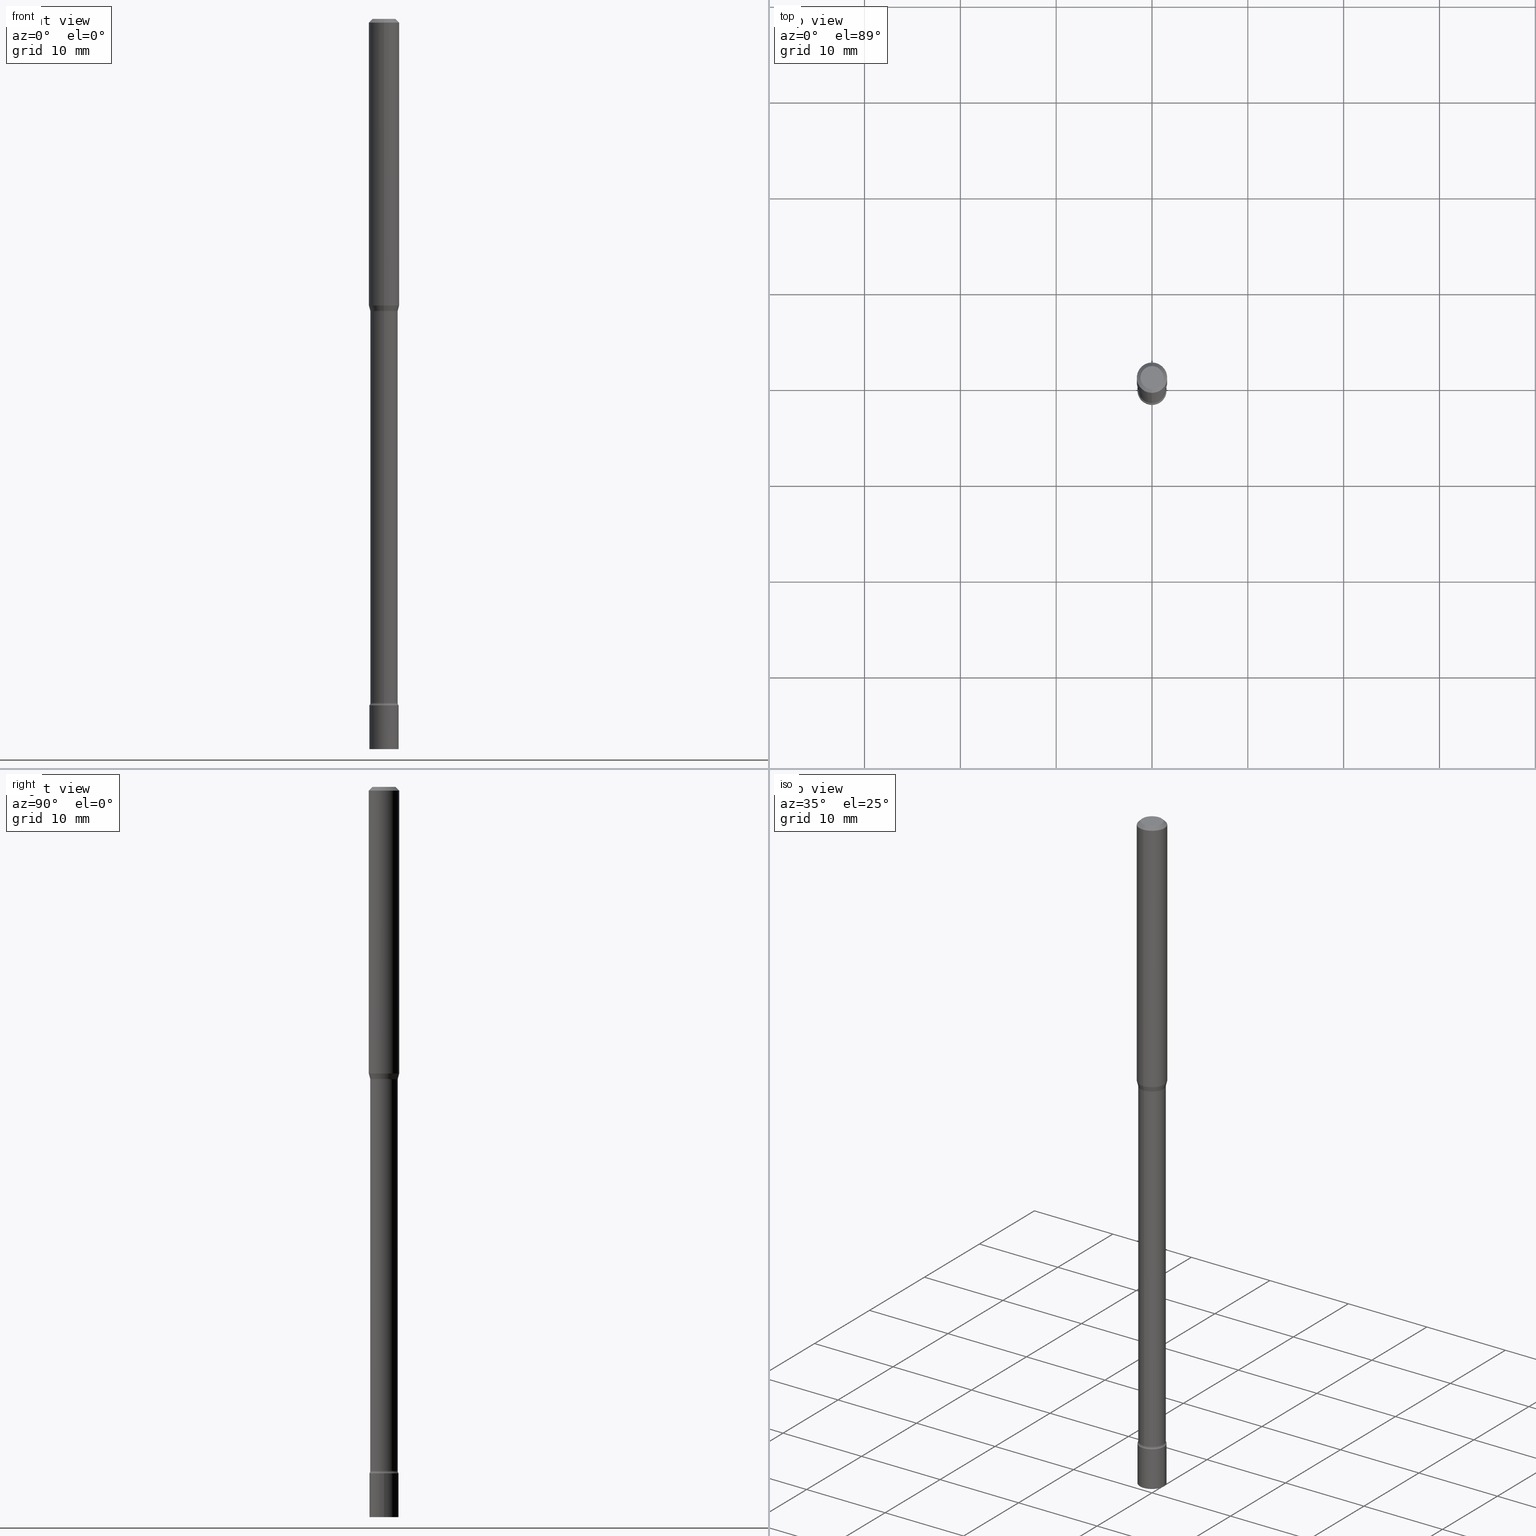
[diagram: canonical four-view strip — front | top / right | iso, engineering-drawing reading convention]
A machine part, canonical four-view strip (front | top / right | iso — engineering-drawing reading convention). The complete STEP part file that produces these views, byte-faithful:
ISO-10303-21;
HEADER;
FILE_DESCRIPTION (( 'STEP AP203' ),
    '1' );
FILE_NAME ('03642.STEP',
    '2024-03-08T22:18:01',
    ( '' ),
    ( '' ),
    'SwSTEP 2.0',
    'SolidWorks 2023',
    '' );
FILE_SCHEMA (( 'CONFIG_CONTROL_DESIGN' ));
ENDSEC;

DATA;
#1 = CIRCLE ( 'NONE', #406, 0.05999999999999999778 ) ;
#2 = DIRECTION ( 'NONE',  ( -1.807323732225326984E-15, -0.2588190451025177419, 0.9659258262890690894 ) ) ;
#3 = EDGE_CURVE ( 'NONE', #59, #459, #249, .T. ) ;
#4 = LINE ( 'NONE', #159, #421 ) ;
#5 = CC_DESIGN_DATE_AND_TIME_ASSIGNMENT ( #30, #104, ( #339 ) ) ;
#6 = DESIGN_CONTEXT ( 'detailed design', #25, 'design' ) ;
#7 = CARTESIAN_POINT ( 'NONE',  ( -3.938390950214759209E-16, -0.05640000000000419678, -1.201974787463810923 ) ) ;
#8 = ORIENTED_EDGE ( 'NONE', *, *, #14, .T. ) ;
#9 = FACE_OUTER_BOUND ( 'NONE', #244, .T. ) ;
#10 = AXIS2_PLACEMENT_3D ( 'NONE', #17, #451, #262 ) ;
#11 = CARTESIAN_POINT ( 'NONE',  ( 6.872543829465588076E-29, -9.811707045645844346E-15, -2.810251153914437250 ) ) ;
#12 = APPROVAL_PERSON_ORGANIZATION ( #100, #142, #19 ) ;
#13 = DIRECTION ( 'NONE',  ( -6.982962677686265922E-15, -1.000000000000000000, 3.483106191921935554E-15 ) ) ;
#14 = EDGE_CURVE ( 'NONE', #314, #465, #331, .T. ) ;
#15 = ADVANCED_FACE ( 'NONE', ( #285 ), #304, .F. ) ;
#16 = DIRECTION ( 'NONE',  ( 1.000000000000000000, -6.982962677686265922E-15, 4.876176775795935793E-29 ) ) ;
#17 = CARTESIAN_POINT ( 'NONE',  ( 2.929967031173688122E-29, -4.183018526563891647E-15, -1.198092501787273223 ) ) ;
#18 = CARTESIAN_POINT ( 'NONE',  ( 4.135358722124479375E-16, 0.05639999999999040919, -2.810251153914437250 ) ) ;
#19 = APPROVAL_ROLE ( '' ) ;
#20 = CARTESIAN_POINT ( 'NONE',  ( 4.364351673553919652E-16, 0.06249999999999995143, -0.01500000000000024751 ) ) ;
#21 = TOROIDAL_SURFACE ( 'NONE', #35, 0.07139999999999999125, 0.01499999999999999424 ) ;
#22 = ADVANCED_FACE ( 'NONE', ( #442 ), #21, .F. ) ;
#23 = CARTESIAN_POINT ( 'NONE',  ( 6.896222033442085337E-29, -9.845977375537671403E-15, -2.819999999999999840 ) ) ;
#24 = CYLINDRICAL_SURFACE ( 'NONE', #238, 0.05999999999999999778 ) ;
#25 = APPLICATION_CONTEXT ( 'configuration controlled 3d designs of mechanical parts and assemblies' ) ;
#26 = CARTESIAN_POINT ( 'NONE',  ( 3.668289835888551515E-31, -5.237097954027526852E-17, -0.01500000000000003067 ) ) ;
#27 = ORIENTED_EDGE ( 'NONE', *, *, #360, .F. ) ;
#28 = AXIS2_PLACEMENT_3D ( 'NONE', #45, #183, #395 ) ;
#29 = ORIENTED_EDGE ( 'NONE', *, *, #396, .F. ) ;
#30 = DATE_AND_TIME ( #463, #188 ) ;
#31 = ADVANCED_BREP_SHAPE_REPRESENTATION ( '03642', ( #222, #232, #504 ), #81 ) ;
#32 = CC_DESIGN_PERSON_AND_ORGANIZATION_ASSIGNMENT ( #429, #194, ( #279 ) ) ;
#33 = EDGE_LOOP ( 'NONE', ( #281, #154, #379, #185 ) ) ;
#34 = DIRECTION ( 'NONE',  ( 1.000000000000000000, -6.982962677686268288E-15, 0.000000000000000000 ) ) ;
#35 = AXIS2_PLACEMENT_3D ( 'NONE', #329, #377, #199 ) ;
#36 = VECTOR ( 'NONE', #290, 39.37007874015748143 ) ;
#37 = ORIENTED_EDGE ( 'NONE', *, *, #308, .T. ) ;
#38 = CARTESIAN_POINT ( 'NONE',  ( 6.896222033442085337E-29, -9.845977375537671403E-15, -2.819999999999999840 ) ) ;
#39 = DIRECTION ( 'NONE',  ( -2.445526557259029404E-29, 3.491398636018344234E-15, 1.000000000000000000 ) ) ;
#40 = CIRCLE ( 'NONE', #502, 0.05639999999999999181 ) ;
#41 = CIRCLE ( 'NONE', #434, 0.05999999999999999778 ) ;
#42 = LINE ( 'NONE', #208, #36 ) ;
#43 = DIRECTION ( 'NONE',  ( -6.982962677686266711E-15, -1.000000000000000000, 0.000000000000000000 ) ) ;
#44 = APPROVAL ( #319, 'UNSPECIFIED' ) ;
#45 = CARTESIAN_POINT ( 'NONE',  ( 2.929967031173688122E-29, -4.183018526563891647E-15, -1.198092501787273223 ) ) ;
#46 = EDGE_CURVE ( 'NONE', #440, #197, #4, .T. ) ;
#47 = DIRECTION ( 'NONE',  ( -2.445526557259029404E-29, 3.491398636018344234E-15, 1.000000000000000000 ) ) ;
#48 = AXIS2_PLACEMENT_3D ( 'NONE', #175, #357, #256 ) ;
#49 = CARTESIAN_POINT ( 'NONE',  ( 3.316907271900976096E-16, 0.04749999999999999362, -1.803003548668948845E-16 ) ) ;
#50 = PERSON_AND_ORGANIZATION ( #505, #470 ) ;
#51 = LINE ( 'NONE', #352, #367 ) ;
#52 = CARTESIAN_POINT ( 'NONE',  ( 0.000000000000000000, 0.000000000000000000, 0.000000000000000000 ) ) ;
#53 = DIRECTION ( 'NONE',  ( -2.438088387897960049E-29, 3.491481338843145188E-15, 1.000000000000000000 ) ) ;
#54 = CARTESIAN_POINT ( 'NONE',  ( -3.938390950215061442E-16, -0.05640000000000010283, 1.969148830714349761E-16 ) ) ;
#55 = CARTESIAN_POINT ( 'NONE',  ( -3.974081752709226087E-16, -0.05691111260566815433, -1.198092501787273223 ) ) ;
#56 = APPLICATION_CONTEXT ( 'configuration controlled 3d designs of mechanical parts and assemblies' ) ;
#57 = CLOSED_SHELL ( 'NONE', ( #258, #108, #282, #321 ) ) ;
#58 = ORIENTED_EDGE ( 'NONE', *, *, #201, .T. ) ;
#59 = VERTEX_POINT ( 'NONE', #166 ) ;
#60 = COORDINATED_UNIVERSAL_TIME_OFFSET ( 5, 0, .BEHIND. ) ;
#61 = VERTEX_POINT ( 'NONE', #292 ) ;
#62 = EDGE_CURVE ( 'NONE', #224, #503, #336, .T. ) ;
#63 = ORIENTED_EDGE ( 'NONE', *, *, #147, .T. ) ;
#64 = ADVANCED_FACE ( 'NONE', ( #237 ), #369, .F. ) ;
#65 = CARTESIAN_POINT ( 'NONE',  ( -4.364351673553912750E-16, -0.06250000000000005551, -0.01499999999999981209 ) ) ;
#66 = AXIS2_PLACEMENT_3D ( 'NONE', #295, #91, #422 ) ;
#67 = LOCAL_TIME ( 17, 18, 1.000000000000000000, #95 ) ;
#68 = ORIENTED_EDGE ( 'NONE', *, *, #296, .T. ) ;
#69 = ORIENTED_EDGE ( 'NONE', *, *, #441, .T. ) ;
#70 = ORIENTED_EDGE ( 'NONE', *, *, #97, .F. ) ;
#71 = ORIENTED_EDGE ( 'NONE', *, *, #218, .T. ) ;
#72 = EDGE_LOOP ( 'NONE', ( #162, #151 ) ) ;
#73 = CLOSED_SHELL ( 'NONE', ( #15, #345, #203, #247, #476, #261, #362, #403, #515, #217, #64, #86, #273, #22 ) ) ;
#74 = LOCAL_TIME ( 17, 18, 1.000000000000000000, #177 ) ;
#75 = DIRECTION ( 'NONE',  ( -6.982962677686266711E-15, -1.000000000000000000, 3.491398636018344234E-15 ) ) ;
#76 = ORIENTED_EDGE ( 'NONE', *, *, #242, .T. ) ;
#77 = VERTEX_POINT ( 'NONE', #55 ) ;
#78 = UNCERTAINTY_MEASURE_WITH_UNIT (LENGTH_MEASURE( 1.000000000000000082E-05 ), #511, 'distance_accuracy_value', 'NONE');
#79 = DIRECTION ( 'NONE',  ( -6.982962677686266711E-15, -1.000000000000000000, 3.491398636018344234E-15 ) ) ;
#80 = AXIS2_PLACEMENT_3D ( 'NONE', #96, #263, #127 ) ;
#81 =( GEOMETRIC_REPRESENTATION_CONTEXT ( 3 ) GLOBAL_UNCERTAINTY_ASSIGNED_CONTEXT ( ( #78 ) ) GLOBAL_UNIT_ASSIGNED_CONTEXT ( ( #511, #313, #90 ) ) REPRESENTATION_CONTEXT ( 'NONE', 'WORKASPACE' ) );
#82 = CARTESIAN_POINT ( 'NONE',  ( -4.985835351867319182E-16, -0.07140000000000999714, -2.810251153914437250 ) ) ;
#83 = APPROVAL ( #456, 'UNSPECIFIED' ) ;
#84 = CARTESIAN_POINT ( 'NONE',  ( 2.929967031173688122E-29, -4.183018526563891647E-15, -1.198092501787273223 ) ) ;
#85 = LINE ( 'NONE', #418, #305 ) ;
#86 = ADVANCED_FACE ( 'NONE', ( #384 ), #375, .F. ) ;
#87 = CARTESIAN_POINT ( 'NONE',  ( 4.263256414561289732E-16, 0.05999999999999015149, -2.819999999999999840 ) ) ;
#88 = EDGE_CURVE ( 'NONE', #440, #152, #513, .T. ) ;
#89 = FACE_OUTER_BOUND ( 'NONE', #325, .T. ) ;
#90 =( NAMED_UNIT ( * ) SI_UNIT ( $, .STERADIAN. ) SOLID_ANGLE_UNIT ( ) );
#91 = DIRECTION ( 'NONE',  ( 1.000000000000000000, -7.105427357601001070E-15, 4.926314495724585698E-29 ) ) ;
#92 = AXIS2_PLACEMENT_3D ( 'NONE', #393, #266, #426 ) ;
#93 = CARTESIAN_POINT ( 'NONE',  ( -3.773273898774340269E-16, -0.04749999999999999362, 1.369235958988242775E-16 ) ) ;
#94 = CC_DESIGN_APPROVAL ( #83, ( #339 ) ) ;
#95 = COORDINATED_UNIVERSAL_TIME_OFFSET ( 5, 0, .BEHIND. ) ;
#96 = CARTESIAN_POINT ( 'NONE',  ( 2.939461263898527766E-29, -4.196573133479589427E-15, -1.201974787463811145 ) ) ;
#97 = EDGE_CURVE ( 'NONE', #152, #440, #196, .T. ) ;
#98 = DIRECTION ( 'NONE',  ( -2.445526557259029404E-29, 3.491398636018344234E-15, 1.000000000000000000 ) ) ;
#99 = DIRECTION ( 'NONE',  ( -2.445526557259029404E-29, 3.491398636018344234E-15, 1.000000000000000000 ) ) ;
#100 = PERSON_AND_ORGANIZATION ( #505, #470 ) ;
#101 = AXIS2_PLACEMENT_3D ( 'NONE', #38, #250, #412 ) ;
#102 = AXIS2_PLACEMENT_3D ( 'NONE', #156, #327, #165 ) ;
#103 = CC_DESIGN_DATE_AND_TIME_ASSIGNMENT ( #350, #267, ( #114 ) ) ;
#104 = DATE_TIME_ROLE ( 'creation_date' ) ;
#105 = FACE_OUTER_BOUND ( 'NONE', #202, .T. ) ;
#106 = EDGE_CURVE ( 'NONE', #465, #314, #400, .T. ) ;
#107 = DATE_AND_TIME ( #136, #67 ) ;
#108 = ADVANCED_FACE ( 'NONE', ( #492 ), #210, .T. ) ;
#109 = DIRECTION ( 'NONE',  ( -6.982962677686266711E-15, -1.000000000000000000, 0.000000000000000000 ) ) ;
#110 = ORIENTED_EDGE ( 'NONE', *, *, #123, .F. ) ;
#111 = PERSON_AND_ORGANIZATION ( #505, #470 ) ;
#112 = DIRECTION ( 'NONE',  ( -6.982962677686265922E-15, -1.000000000000000000, 3.491398636018344234E-15 ) ) ;
#113 = VECTOR ( 'NONE', #425, 39.37007874015748143 ) ;
#114 = SECURITY_CLASSIFICATION ( '', '', #469 ) ;
#115 = EDGE_CURVE ( 'NONE', #503, #197, #433, .T. ) ;
#116 = ORIENTED_EDGE ( 'NONE', *, *, #3, .T. ) ;
#117 = ORIENTED_EDGE ( 'NONE', *, *, #291, .F. ) ;
#118 = EDGE_LOOP ( 'NONE', ( #37, #225 ) ) ;
#119 = DIRECTION ( 'NONE',  ( -2.445526557259029404E-29, 3.491398636018344234E-15, 1.000000000000000000 ) ) ;
#120 = AXIS2_PLACEMENT_3D ( 'NONE', #497, #53, #16 ) ;
#121 = CYLINDRICAL_SURFACE ( 'NONE', #343, 0.05640000000000010283 ) ;
#122 = EDGE_CURVE ( 'NONE', #436, #460, #286, .T. ) ;
#123 = EDGE_CURVE ( 'NONE', #189, #148, #163, .T. ) ;
#124 = CARTESIAN_POINT ( 'NONE',  ( 4.007461029687658664E-16, 0.05639999999999580071, -1.201974787463811145 ) ) ;
#125 = VECTOR ( 'NONE', #351, 39.37007874015748143 ) ;
#126 = DIRECTION ( 'NONE',  ( -2.445526557259029404E-29, 3.491398636018344234E-15, 1.000000000000000000 ) ) ;
#127 = DIRECTION ( 'NONE',  ( -6.982962677686265922E-15, -1.000000000000000000, 2.421851058212999609E-15 ) ) ;
#128 = DIRECTION ( 'NONE',  ( -2.445526557259029404E-29, 3.491398636018344234E-15, 1.000000000000000000 ) ) ;
#129 = PLANE ( 'NONE',  #494 ) ;
#130 = DIRECTION ( 'NONE',  ( 6.982962677686265922E-15, 1.000000000000000000, -3.483106191921935554E-15 ) ) ;
#131 = MECHANICAL_CONTEXT ( 'NONE', #56, 'mechanical' ) ;
#132 = EDGE_CURVE ( 'NONE', #407, #460, #259, .T. ) ;
#133 = CARTESIAN_POINT ( 'NONE',  ( 6.872381534443541527E-29, -9.811939461354673700E-15, -2.810251153914437250 ) ) ;
#134 = AXIS2_PLACEMENT_3D ( 'NONE', #454, #255, #140 ) ;
#135 = CONICAL_SURFACE ( 'NONE', #102, 0.05691111260566397018, 0.2617993877991497964 ) ;
#136 = CALENDAR_DATE ( 2024, 8, 3 ) ;
#137 = CARTESIAN_POINT ( 'NONE',  ( 4.440892098500915082E-16, 0.06249999999999993755, -0.01500000000000024751 ) ) ;
#138 = DIRECTION ( 'NONE',  ( 4.937700262164548042E-15, 0.7071067811865451302, -0.7071067811865499042 ) ) ;
#139 = DIMENSIONAL_EXPONENTS ( 1.000000000000000000, 0.000000000000000000, 0.000000000000000000, 0.000000000000000000, 0.000000000000000000, 0.000000000000000000, 0.000000000000000000 ) ;
#140 = DIRECTION ( 'NONE',  ( 7.105427357600997914E-15, 1.000000000000000000, 0.000000000000000000 ) ) ;
#141 = CARTESIAN_POINT ( 'NONE',  ( 3.668289835888551515E-31, -5.237097954027526852E-17, -0.01500000000000003067 ) ) ;
#142 = APPROVAL ( #264, 'UNSPECIFIED' ) ;
#143 = ORIENTED_EDGE ( 'NONE', *, *, #160, .F. ) ;
#144 = AXIS2_PLACEMENT_3D ( 'NONE', #216, #220, #182 ) ;
#145 = VECTOR ( 'NONE', #2, 39.37007874015748143 ) ;
#146 = ORIENTED_EDGE ( 'NONE', *, *, #106, .F. ) ;
#147 = EDGE_CURVE ( 'NONE', #436, #440, #446, .T. ) ;
#148 = VERTEX_POINT ( 'NONE', #87 ) ;
#149 = ORIENTED_EDGE ( 'NONE', *, *, #115, .T. ) ;
#150 = DATE_AND_TIME ( #272, #354 ) ;
#151 = ORIENTED_EDGE ( 'NONE', *, *, #410, .F. ) ;
#152 = VERTEX_POINT ( 'NONE', #346 ) ;
#153 = AXIS2_PLACEMENT_3D ( 'NONE', #52, #348, #219 ) ;
#154 = ORIENTED_EDGE ( 'NONE', *, *, #160, .T. ) ;
#155 = ORIENTED_EDGE ( 'NONE', *, *, #291, .T. ) ;
#156 = CARTESIAN_POINT ( 'NONE',  ( 2.929967031173688122E-29, -4.183018526563891647E-15, -1.198092501787273223 ) ) ;
#157 = PRODUCT_RELATED_PRODUCT_CATEGORY ( 'detail', '', ( #309 ) ) ;
#158 = EDGE_LOOP ( 'NONE', ( #8, #276 ) ) ;
#159 = CARTESIAN_POINT ( 'NONE',  ( 4.440892098500625669E-16, 0.06250000000000000000, -2.182124147511465146E-16 ) ) ;
#160 = EDGE_CURVE ( 'NONE', #436, #77, #453, .T. ) ;
#161 = CARTESIAN_POINT ( 'NONE',  ( -3.974081752709226087E-16, -0.05691111260566815433, -1.198092501787273223 ) ) ;
#162 = ORIENTED_EDGE ( 'NONE', *, *, #209, .F. ) ;
#163 = CIRCLE ( 'NONE', #134, 0.01499999999999997689 ) ;
#164 = EDGE_CURVE ( 'NONE', #460, #407, #40, .T. ) ;
#165 = DIRECTION ( 'NONE',  ( -6.982962677686265922E-15, -1.000000000000000000, 2.400100673301879051E-15 ) ) ;
#166 = CARTESIAN_POINT ( 'NONE',  ( 0.05999999999999999778, -1.089342177719061299E-14, -3.000000000000000444 ) ) ;
#167 = DIRECTION ( 'NONE',  ( -2.445526557259029404E-29, 3.491398636018344234E-15, 1.000000000000000000 ) ) ;
#168 = CARTESIAN_POINT ( 'NONE',  ( -4.287811248607203282E-16, -0.06250000000000005551, -0.01499999999999981209 ) ) ;
#169 = CARTESIAN_POINT ( 'NONE',  ( 7.071934401616030979E-46, -1.009637047306788227E-31, -2.891783931204707953E-17 ) ) ;
#170 = CARTESIAN_POINT ( 'NONE',  ( 6.896384891470462537E-29, -9.845744153571730021E-15, -2.819999999999999840 ) ) ;
#171 = CONICAL_SURFACE ( 'NONE', #461, 0.06250000000000000000, 0.7853981633974483900 ) ;
#172 = AXIS2_PLACEMENT_3D ( 'NONE', #82, #416, #109 ) ;
#173 = FACE_OUTER_BOUND ( 'NONE', #118, .T. ) ;
#174 = DIRECTION ( 'NONE',  ( -2.445526557259029404E-29, 3.491398636018344234E-15, 1.000000000000000000 ) ) ;
#175 = CARTESIAN_POINT ( 'NONE',  ( 0.000000000000000000, 0.000000000000000000, 0.000000000000000000 ) ) ;
#176 = DIRECTION ( 'NONE',  ( -2.445526557259029404E-29, 3.491398636018344234E-15, 1.000000000000000000 ) ) ;
#177 = COORDINATED_UNIVERSAL_TIME_OFFSET ( 5, 0, .BEHIND. ) ;
#178 = CONICAL_SURFACE ( 'NONE', #10, 0.05691111260566397018, 0.2617993877991497964 ) ;
#179 = CIRCLE ( 'NONE', #28, 0.05691111260566397018 ) ;
#180 = FACE_OUTER_BOUND ( 'NONE', #508, .T. ) ;
#181 = CC_DESIGN_APPROVAL ( #142, ( #114 ) ) ;
#182 = DIRECTION ( 'NONE',  ( -6.982962677686265922E-15, -1.000000000000000000, 4.370956789862821150E-15 ) ) ;
#183 = DIRECTION ( 'NONE',  ( -2.445526557259029404E-29, 3.491398636018344234E-15, 1.000000000000000000 ) ) ;
#184 = DIRECTION ( 'NONE',  ( 1.000000000000000000, 0.000000000000000000, 0.000000000000000000 ) ) ;
#185 = ORIENTED_EDGE ( 'NONE', *, *, #88, .F. ) ;
#186 = DIRECTION ( 'NONE',  ( 2.445526557259029404E-29, -3.491398636018344234E-15, -1.000000000000000000 ) ) ;
#187 = AXIS2_PLACEMENT_3D ( 'NONE', #133, #174, #450 ) ;
#188 = LOCAL_TIME ( 17, 18, 1.000000000000000000, #60 ) ;
#189 = VERTEX_POINT ( 'NONE', #18 ) ;
#190 = APPROVAL_ROLE ( '' ) ;
#191 = EDGE_CURVE ( 'NONE', #459, #465, #51, .T. ) ;
#192 = ORIENTED_EDGE ( 'NONE', *, *, #123, .T. ) ;
#193 = EDGE_LOOP ( 'NONE', ( #230, #358, #241, #265 ) ) ;
#194 = PERSON_AND_ORGANIZATION_ROLE ( 'creator' ) ;
#195 = LENGTH_MEASURE_WITH_UNIT ( LENGTH_MEASURE( 0.02539999999999999897 ), #401 );
#196 = CIRCLE ( 'NONE', #353, 0.06250000000000000000 ) ;
#197 = VERTEX_POINT ( 'NONE', #137 ) ;
#198 = CIRCLE ( 'NONE', #172, 0.01499999999999997689 ) ;
#199 = DIRECTION ( 'NONE',  ( -6.982962677686265922E-15, -1.000000000000000000, 3.491398636018344628E-15 ) ) ;
#200 = DATE_AND_TIME ( #427, #74 ) ;
#201 = EDGE_CURVE ( 'NONE', #61, #189, #359, .T. ) ;
#202 = EDGE_LOOP ( 'NONE', ( #366, #432, #68, #287 ) ) ;
#203 = ADVANCED_FACE ( 'NONE', ( #9 ), #341, .F. ) ;
#204 = DIRECTION ( 'NONE',  ( -2.445468806185136597E-29, 3.491481338843145583E-15, 1.000000000000000000 ) ) ;
#205 = CC_DESIGN_PERSON_AND_ORGANIZATION_ASSIGNMENT ( #50, #386, ( #309 ) ) ;
#206 = CARTESIAN_POINT ( 'NONE',  ( 2.939391848563759513E-29, -4.196672540189852739E-15, -1.201974787463811145 ) ) ;
#207 = CIRCLE ( 'NONE', #487, 0.05999999999999999778 ) ;
#208 = CARTESIAN_POINT ( 'NONE',  ( 0.05999999999999999778, -4.189777606611760421E-16, 2.925706065477561756E-30 ) ) ;
#209 = EDGE_CURVE ( 'NONE', #517, #148, #207, .T. ) ;
#210 = PLANE ( 'NONE',  #120 ) ;
#211 = FACE_OUTER_BOUND ( 'NONE', #512, .T. ) ;
#212 = DIRECTION ( 'NONE',  ( -6.982962677686265922E-15, -1.000000000000000000, 0.000000000000000000 ) ) ;
#213 = CC_DESIGN_APPROVAL ( #44, ( #279 ) ) ;
#214 = LINE ( 'NONE', #268, #125 ) ;
#215 = APPROVAL_ROLE ( '' ) ;
#216 = CARTESIAN_POINT ( 'NONE',  ( 2.878958209596842848E-29, -4.110194892917521342E-15, -1.177234490073830075 ) ) ;
#217 = ADVANCED_FACE ( 'NONE', ( #173 ), #129, .F. ) ;
#218 = EDGE_CURVE ( 'NONE', #189, #61, #414, .T. ) ;
#219 = DIRECTION ( 'NONE',  ( -6.982962677686266711E-15, -1.000000000000000000, 3.491398636018344234E-15 ) ) ;
#220 = DIRECTION ( 'NONE',  ( -2.445526557259029404E-29, 3.491398636018344234E-15, 1.000000000000000000 ) ) ;
#221 = DIRECTION ( 'NONE',  ( -2.445526557259029684E-29, 3.491398636018344234E-15, 1.000000000000000000 ) ) ;
#222 = MANIFOLD_SOLID_BREP ( 'Body-Move/Copy2[1]', #57 ) ;
#223 = AXIS2_PLACEMENT_3D ( 'NONE', #491, #297, #449 ) ;
#224 = VERTEX_POINT ( 'NONE', #93 ) ;
#225 = ORIENTED_EDGE ( 'NONE', *, *, #388, .T. ) ;
#226 = ORIENTED_EDGE ( 'NONE', *, *, #441, .F. ) ;
#227 = EDGE_CURVE ( 'NONE', #189, #460, #214, .T. ) ;
#228 = AXIS2_PLACEMENT_3D ( 'NONE', #417, #307, #43 ) ;
#229 = CIRCLE ( 'NONE', #288, 0.01500000000000000291 ) ;
#230 = ORIENTED_EDGE ( 'NONE', *, *, #97, .T. ) ;
#231 = PERSON_AND_ORGANIZATION_ROLE ( 'creator' ) ;
#232 = MANIFOLD_SOLID_BREP ( 'Body-Move/Copy2[2]', #73 ) ;
#233 = CYLINDRICAL_SURFACE ( 'NONE', #394, 0.06250000000000000000 ) ;
#234 = ORIENTED_EDGE ( 'NONE', *, *, #396, .T. ) ;
#235 = APPROVAL_DATE_TIME ( #200, #142 ) ;
#236 = ORIENTED_EDGE ( 'NONE', *, *, #423, .T. ) ;
#237 = FACE_OUTER_BOUND ( 'NONE', #72, .T. ) ;
#238 = AXIS2_PLACEMENT_3D ( 'NONE', #389, #496, #385 ) ;
#239 = ORIENTED_EDGE ( 'NONE', *, *, #227, .F. ) ;
#240 = APPROVAL_PERSON_ORGANIZATION ( #493, #83, #215 ) ;
#241 = ORIENTED_EDGE ( 'NONE', *, *, #115, .F. ) ;
#242 = EDGE_CURVE ( 'NONE', #77, #436, #179, .T. ) ;
#243 = FACE_OUTER_BOUND ( 'NONE', #33, .T. ) ;
#244 = EDGE_LOOP ( 'NONE', ( #500, #192, #479, #437 ) ) ;
#245 = DIRECTION ( 'NONE',  ( -2.445526557259029404E-29, 3.491398636018344234E-15, 1.000000000000000000 ) ) ;
#246 = DIRECTION ( 'NONE',  ( -2.445468806185136597E-29, 3.491481338843145583E-15, 1.000000000000000000 ) ) ;
#247 = ADVANCED_FACE ( 'NONE', ( #499 ), #171, .T. ) ;
#248 = DIRECTION ( 'NONE',  ( -1.000000000000000000, 6.982962677686265922E-15, -4.883557194083112901E-29 ) ) ;
#249 = CIRCLE ( 'NONE', #269, 0.05999999999999999778 ) ;
#250 = DIRECTION ( 'NONE',  ( -2.445468806185136597E-29, 3.491481338843145583E-15, 1.000000000000000000 ) ) ;
#251 = CC_DESIGN_SECURITY_CLASSIFICATION ( #114, ( #279 ) ) ;
#252 = CARTESIAN_POINT ( 'NONE',  ( -4.985835351867699808E-16, -0.07140000000000419622, -1.201974787463810701 ) ) ;
#253 = DIRECTION ( 'NONE',  ( -6.982962677686265922E-15, -1.000000000000000000, 2.421851058212999609E-15 ) ) ;
#254 = CARTESIAN_POINT ( 'NONE',  ( 0.000000000000000000, 0.000000000000000000, 0.000000000000000000 ) ) ;
#255 = DIRECTION ( 'NONE',  ( 1.000000000000000000, -7.105427357601001070E-15, 4.926314495724585698E-29 ) ) ;
#256 = DIRECTION ( 'NONE',  ( 1.000000000000000000, -6.982962677686267499E-15, 4.876176775795936353E-29 ) ) ;
#257 = CARTESIAN_POINT ( 'NONE',  ( 2.939461263898527766E-29, -4.196573133479589427E-15, -1.201974787463811145 ) ) ;
#258 = ADVANCED_FACE ( 'NONE', ( #211 ), #24, .T. ) ;
#259 = CIRCLE ( 'NONE', #80, 0.05639999999999999181 ) ;
#260 = AXIS2_PLACEMENT_3D ( 'NONE', #169, #245, #75 ) ;
#261 = ADVANCED_FACE ( 'NONE', ( #180 ), #178, .T. ) ;
#262 = DIRECTION ( 'NONE',  ( -6.982962677686265922E-15, -1.000000000000000000, 2.400100673301879051E-15 ) ) ;
#263 = DIRECTION ( 'NONE',  ( -2.445526557259029404E-29, 3.491398636018344234E-15, 1.000000000000000000 ) ) ;
#264 = APPROVAL_STATUS ( 'not_yet_approved' ) ;
#265 = ORIENTED_EDGE ( 'NONE', *, *, #423, .F. ) ;
#266 = DIRECTION ( 'NONE',  ( -2.445526557259028843E-29, 3.491398636018344234E-15, 1.000000000000000000 ) ) ;
#267 = DATE_TIME_ROLE ( 'classification_date' ) ;
#268 = CARTESIAN_POINT ( 'NONE',  ( 4.007461029686971862E-16, 0.05640000000000010283, -1.969148830714349761E-16 ) ) ;
#269 = AXIS2_PLACEMENT_3D ( 'NONE', #372, #246, #34 ) ;
#270 = AXIS2_PLACEMENT_3D ( 'NONE', #477, #439, #519 ) ;
#271 = ORIENTED_EDGE ( 'NONE', *, *, #88, .T. ) ;
#272 = CALENDAR_DATE ( 2024, 8, 3 ) ;
#273 = ADVANCED_FACE ( 'NONE', ( #310 ), #306, .T. ) ;
#274 = CARTESIAN_POINT ( 'NONE',  ( 3.840629472727447874E-16, 0.04749999999999999362, -1.947592745229183872E-16 ) ) ;
#275 = EDGE_CURVE ( 'NONE', #197, #503, #444, .T. ) ;
#276 = ORIENTED_EDGE ( 'NONE', *, *, #106, .T. ) ;
#277 = APPROVAL_DATE_TIME ( #150, #44 ) ;
#278 = AXIS2_PLACEMENT_3D ( 'NONE', #23, #356, #349 ) ;
#279 = PRODUCT_DEFINITION_FORMATION_WITH_SPECIFIED_SOURCE ( 'ANY', '', #309, .NOT_KNOWN. ) ;
#280 = EDGE_LOOP ( 'NONE', ( #143, #317, #328, #29 ) ) ;
#281 = ORIENTED_EDGE ( 'NONE', *, *, #147, .F. ) ;
#282 = ADVANCED_FACE ( 'NONE', ( #89 ), #300, .T. ) ;
#283 = ORIENTED_EDGE ( 'NONE', *, *, #62, .T. ) ;
#284 = EDGE_LOOP ( 'NONE', ( #404, #467, #234, #428 ) ) ;
#285 = FACE_OUTER_BOUND ( 'NONE', #280, .T. ) ;
#286 = CIRCLE ( 'NONE', #66, 0.01500000000000000291 ) ;
#287 = ORIENTED_EDGE ( 'NONE', *, *, #275, .T. ) ;
#288 = AXIS2_PLACEMENT_3D ( 'NONE', #252, #248, #335 ) ;
#289 = DIRECTION ( 'NONE',  ( -6.982962677686265922E-15, -1.000000000000000000, 3.491398636018344628E-15 ) ) ;
#290 = DIRECTION ( 'NONE',  ( -2.445468806185136877E-29, 3.491481338843145188E-15, 1.000000000000000000 ) ) ;
#291 = EDGE_CURVE ( 'NONE', #61, #407, #420, .T. ) ;
#292 = CARTESIAN_POINT ( 'NONE',  ( -3.938390950214382035E-16, -0.05640000000001002545, -2.810251153914437250 ) ) ;
#293 = CARTESIAN_POINT ( 'NONE',  ( -0.05999999999999999778, -9.733885054577494177E-15, -2.819999999999999840 ) ) ;
#294 = AXIS2_PLACEMENT_3D ( 'NONE', #206, #119, #289 ) ;
#295 = CARTESIAN_POINT ( 'NONE',  ( 5.073275133327408556E-16, 0.07139999999999580016, -1.201974787463811367 ) ) ;
#296 = EDGE_CURVE ( 'NONE', #518, #197, #392, .T. ) ;
#297 = DIRECTION ( 'NONE',  ( -2.445526557259029404E-29, 3.491398636018344234E-15, 1.000000000000000000 ) ) ;
#298 = APPLICATION_PROTOCOL_DEFINITION ( 'international standard', 'config_control_design', 1994, #56 ) ;
#299 = DIRECTION ( 'NONE',  ( -6.982962677686265922E-15, -1.000000000000000000, 2.400100673301879051E-15 ) ) ;
#300 = CYLINDRICAL_SURFACE ( 'NONE', #48, 0.05999999999999999778 ) ;
#301 = APPLICATION_PROTOCOL_DEFINITION ( 'international standard', 'config_control_design', 1994, #25 ) ;
#302 = DIRECTION ( 'NONE',  ( -6.982962677686266711E-15, -1.000000000000000000, 3.491398636018344234E-15 ) ) ;
#303 = CARTESIAN_POINT ( 'NONE',  ( 3.668289835888551515E-31, -5.237097954027526852E-17, -0.01500000000000003067 ) ) ;
#304 = TOROIDAL_SURFACE ( 'NONE', #294, 0.07139999999999999125, 0.01499999999999999424 ) ;
#305 = VECTOR ( 'NONE', #370, 39.37007874015748143 ) ;
#306 = CYLINDRICAL_SURFACE ( 'NONE', #153, 0.05640000000000010283 ) ;
#307 = DIRECTION ( 'NONE',  ( -2.445526557259029404E-29, 3.491398636018344234E-15, 1.000000000000000000 ) ) ;
#308 = EDGE_CURVE ( 'NONE', #518, #224, #455, .T. ) ;
#309 = PRODUCT ( '03642', '03642', '', ( #131 ) ) ;
#310 = FACE_OUTER_BOUND ( 'NONE', #322, .T. ) ;
#311 = ORIENTED_EDGE ( 'NONE', *, *, #209, .T. ) ;
#312 = PERSON_AND_ORGANIZATION_ROLE ( 'classification_officer' ) ;
#313 =( NAMED_UNIT ( * ) PLANE_ANGLE_UNIT ( ) SI_UNIT ( $, .RADIAN. ) );
#314 = VERTEX_POINT ( 'NONE', #373 ) ;
#315 = AXIS2_PLACEMENT_3D ( 'NONE', #413, #39, #483 ) ;
#316 = DIRECTION ( 'NONE',  ( -2.445526557259029404E-29, 3.491398636018344234E-15, 1.000000000000000000 ) ) ;
#317 = ORIENTED_EDGE ( 'NONE', *, *, #122, .T. ) ;
#318 = ORIENTED_EDGE ( 'NONE', *, *, #191, .T. ) ;
#319 = APPROVAL_STATUS ( 'not_yet_approved' ) ;
#320 = CARTESIAN_POINT ( 'NONE',  ( 0.000000000000000000, 0.000000000000000000, 0.000000000000000000 ) ) ;
#321 = ADVANCED_FACE ( 'NONE', ( #485 ), #340, .T. ) ;
#322 = EDGE_LOOP ( 'NONE', ( #239, #71, #155, #443 ) ) ;
#323 = PERSON_AND_ORGANIZATION_ROLE ( 'design_supplier' ) ;
#324 = VECTOR ( 'NONE', #486, 39.37007874015748143 ) ;
#325 = EDGE_LOOP ( 'NONE', ( #507, #69, #397, #146 ) ) ;
#326 = ORIENTED_EDGE ( 'NONE', *, *, #46, .F. ) ;
#327 = DIRECTION ( 'NONE',  ( -2.445526557259029404E-29, 3.491398636018344234E-15, 1.000000000000000000 ) ) ;
#328 = ORIENTED_EDGE ( 'NONE', *, *, #164, .T. ) ;
#329 = CARTESIAN_POINT ( 'NONE',  ( 2.939391848563759513E-29, -4.196672540189852739E-15, -1.201974787463811145 ) ) ;
#330 = DIRECTION ( 'NONE',  ( -6.982962677686265922E-15, -1.000000000000000000, 0.000000000000000000 ) ) ;
#331 = CIRCLE ( 'NONE', #101, 0.05999999999999999778 ) ;
#332 = EDGE_CURVE ( 'NONE', #77, #152, #374, .T. ) ;
#333 = CONICAL_SURFACE ( 'NONE', #462, 0.06250000000000000000, 0.7853981633974483900 ) ;
#334 = CC_DESIGN_PERSON_AND_ORGANIZATION_ASSIGNMENT ( #111, #231, ( #339 ) ) ;
#335 = DIRECTION ( 'NONE',  ( -6.982962677686262766E-15, -1.000000000000000000, 0.000000000000000000 ) ) ;
#336 = LINE ( 'NONE', #168, #324 ) ;
#337 = CARTESIAN_POINT ( 'NONE',  ( 4.242334931549584276E-16, 0.05691111260565979296, -1.198092501787273445 ) ) ;
#338 = EDGE_LOOP ( 'NONE', ( #475, #283, #149, #514 ) ) ;
#339 = PRODUCT_DEFINITION ( 'UNKNOWN', '', #279, #6 ) ;
#340 = PLANE ( 'NONE',  #270 ) ;
#341 = TOROIDAL_SURFACE ( 'NONE', #520, 0.07140000000000018554, 0.01499999999999997169 ) ;
#342 = CARTESIAN_POINT ( 'NONE',  ( 6.872381534443541527E-29, -9.811939461354673700E-15, -2.810251153914437250 ) ) ;
#343 = AXIS2_PLACEMENT_3D ( 'NONE', #254, #126, #79 ) ;
#344 = DIRECTION ( 'NONE',  ( 2.445526557259028843E-29, -3.491398636018344234E-15, -1.000000000000000000 ) ) ;
#345 = ADVANCED_FACE ( 'NONE', ( #445 ), #121, .T. ) ;
#346 = CARTESIAN_POINT ( 'NONE',  ( -4.364351673553629746E-16, -0.06250000000000412170, -1.177234490073829853 ) ) ;
#347 = COORDINATED_UNIVERSAL_TIME_OFFSET ( 5, 0, .BEHIND. ) ;
#348 = DIRECTION ( 'NONE',  ( -2.445526557259029404E-29, 3.491398636018344234E-15, 1.000000000000000000 ) ) ;
#349 = DIRECTION ( 'NONE',  ( 1.000000000000000000, -6.982962677686268288E-15, 0.000000000000000000 ) ) ;
#350 = DATE_AND_TIME ( #490, #415 ) ;
#351 = DIRECTION ( 'NONE',  ( -2.445526557259029684E-29, 3.491398636018344234E-15, 1.000000000000000000 ) ) ;
#352 = CARTESIAN_POINT ( 'NONE',  ( -0.05999999999999999778, 4.263256414560600957E-16, -2.951361054152943413E-30 ) ) ;
#353 = AXIS2_PLACEMENT_3D ( 'NONE', #457, #176, #387 ) ;
#354 = LOCAL_TIME ( 17, 18, 1.000000000000000000, #363 ) ;
#355 = DIRECTION ( 'NONE',  ( 2.445526557259029404E-29, -3.491398636018344234E-15, -1.000000000000000000 ) ) ;
#356 = DIRECTION ( 'NONE',  ( -2.445468806185136597E-29, 3.491481338843145583E-15, 1.000000000000000000 ) ) ;
#357 = DIRECTION ( 'NONE',  ( -2.445468806185136597E-29, 3.491481338843145583E-15, 1.000000000000000000 ) ) ;
#358 = ORIENTED_EDGE ( 'NONE', *, *, #46, .T. ) ;
#359 = CIRCLE ( 'NONE', #228, 0.05640000000000021385 ) ;
#360 = EDGE_CURVE ( 'NONE', #59, #314, #42, .T. ) ;
#361 = CIRCLE ( 'NONE', #260, 0.04749999999999999362 ) ;
#362 = ADVANCED_FACE ( 'NONE', ( #243 ), #135, .T. ) ;
#363 = COORDINATED_UNIVERSAL_TIME_OFFSET ( 5, 0, .BEHIND. ) ;
#364 = ORIENTED_EDGE ( 'NONE', *, *, #332, .F. ) ;
#365 = APPROVAL_DATE_TIME ( #107, #83 ) ;
#366 = ORIENTED_EDGE ( 'NONE', *, *, #62, .F. ) ;
#367 = VECTOR ( 'NONE', #495, 39.37007874015748143 ) ;
#368 = EDGE_LOOP ( 'NONE', ( #472, #226 ) ) ;
#369 = PLANE ( 'NONE',  #92 ) ;
#370 = DIRECTION ( 'NONE',  ( -2.445526557259029684E-29, 3.491398636018344234E-15, 1.000000000000000000 ) ) ;
#371 = ORIENTED_EDGE ( 'NONE', *, *, #275, .F. ) ;
#372 = CARTESIAN_POINT ( 'NONE',  ( 7.336406418555409790E-29, -1.047444401652943635E-14, -3.000000000000000444 ) ) ;
#373 = CARTESIAN_POINT ( 'NONE',  ( 0.05999999999999999778, -1.026495513619884646E-14, -2.819999999999999840 ) ) ;
#374 = LINE ( 'NONE', #161, #145 ) ;
#375 = TOROIDAL_SURFACE ( 'NONE', #187, 0.07140000000000018554, 0.01499999999999997169 ) ;
#376 = APPROVAL_PERSON_ORGANIZATION ( #399, #44, #190 ) ;
#377 = DIRECTION ( 'NONE',  ( -2.445526557259029404E-29, 3.491398636018344234E-15, 1.000000000000000000 ) ) ;
#378 = CYLINDRICAL_SURFACE ( 'NONE', #315, 0.06250000000000000000 ) ;
#379 = ORIENTED_EDGE ( 'NONE', *, *, #332, .T. ) ;
#380 = CC_DESIGN_PERSON_AND_ORGANIZATION_ASSIGNMENT ( #509, #323, ( #279 ) ) ;
#381 = FACE_OUTER_BOUND ( 'NONE', #478, .T. ) ;
#382 = CARTESIAN_POINT ( 'NONE',  ( 4.043777764598252485E-16, 0.05691111260565979296, -1.198092501787273445 ) ) ;
#383 = VECTOR ( 'NONE', #221, 39.37007874015748143 ) ;
#384 = FACE_OUTER_BOUND ( 'NONE', #435, .T. ) ;
#385 = DIRECTION ( 'NONE',  ( 1.000000000000000000, -6.982962677686267499E-15, 4.876176775795936353E-29 ) ) ;
#386 = PERSON_AND_ORGANIZATION_ROLE ( 'design_owner' ) ;
#387 = DIRECTION ( 'NONE',  ( -6.982962677686265922E-15, -1.000000000000000000, 4.370956789862821150E-15 ) ) ;
#388 = EDGE_CURVE ( 'NONE', #224, #518, #361, .T. ) ;
#389 = CARTESIAN_POINT ( 'NONE',  ( 0.000000000000000000, 0.000000000000000000, 0.000000000000000000 ) ) ;
#390 = CARTESIAN_POINT ( 'NONE',  ( 0.000000000000000000, 0.000000000000000000, 0.000000000000000000 ) ) ;
#391 = DIRECTION ( 'NONE',  ( -2.445526557259029404E-29, 3.491398636018344234E-15, 1.000000000000000000 ) ) ;
#392 = LINE ( 'NONE', #20, #480 ) ;
#393 = CARTESIAN_POINT ( 'NONE',  ( 4.189777606612449195E-16, 0.05999999999999015843, -2.819999999999999840 ) ) ;
#394 = AXIS2_PLACEMENT_3D ( 'NONE', #320, #316, #112 ) ;
#395 = DIRECTION ( 'NONE',  ( -6.982962677686265922E-15, -1.000000000000000000, 2.400100673301879051E-15 ) ) ;
#396 = EDGE_CURVE ( 'NONE', #77, #407, #229, .T. ) ;
#397 = ORIENTED_EDGE ( 'NONE', *, *, #360, .T. ) ;
#398 = PRODUCT_DEFINITION_SHAPE ( 'NONE', 'NONE',  #339 ) ;
#399 = PERSON_AND_ORGANIZATION ( #505, #470 ) ;
#400 = CIRCLE ( 'NONE', #278, 0.05999999999999999778 ) ;
#401 =( LENGTH_UNIT ( ) NAMED_UNIT ( * ) SI_UNIT ( $, .METRE. ) );
#402 = EDGE_LOOP ( 'NONE', ( #58, #473, #501, #117 ) ) ;
#403 = ADVANCED_FACE ( 'NONE', ( #381 ), #378, .T. ) ;
#404 = ORIENTED_EDGE ( 'NONE', *, *, #122, .F. ) ;
#405 = AXIS2_PLACEMENT_3D ( 'NONE', #11, #128, #424 ) ;
#406 = AXIS2_PLACEMENT_3D ( 'NONE', #447, #167, #330 ) ;
#407 = VERTEX_POINT ( 'NONE', #7 ) ;
#408 = CC_DESIGN_PERSON_AND_ORGANIZATION_ASSIGNMENT ( #498, #312, ( #114 ) ) ;
#409 = CARTESIAN_POINT ( 'NONE',  ( 4.440892098500912124E-16, 0.06249999999999587830, -1.177234490073830298 ) ) ;
#410 = EDGE_CURVE ( 'NONE', #148, #517, #1, .T. ) ;
#411 = CARTESIAN_POINT ( 'NONE',  ( -0.05999999999999999778, -9.733885054577494177E-15, -3.000000000000000444 ) ) ;
#412 = DIRECTION ( 'NONE',  ( 1.000000000000000000, -6.982962677686268288E-15, 0.000000000000000000 ) ) ;
#413 = CARTESIAN_POINT ( 'NONE',  ( 0.000000000000000000, 0.000000000000000000, 0.000000000000000000 ) ) ;
#414 = CIRCLE ( 'NONE', #405, 0.05640000000000021385 ) ;
#415 = LOCAL_TIME ( 17, 18, 1.000000000000000000, #347 ) ;
#416 = DIRECTION ( 'NONE',  ( -1.000000000000000000, 6.982962677686265922E-15, -4.883557194083112901E-29 ) ) ;
#417 = CARTESIAN_POINT ( 'NONE',  ( 6.872543829465588076E-29, -9.811707045645844346E-15, -2.810251153914437250 ) ) ;
#418 = CARTESIAN_POINT ( 'NONE',  ( -4.364351673553916201E-16, -0.06250000000000000000, 2.182124147511465146E-16 ) ) ;
#419 = DIRECTION ( 'NONE',  ( -6.982962677686265922E-15, -1.000000000000000000, 3.491398636018343839E-15 ) ) ;
#420 = LINE ( 'NONE', #54, #383 ) ;
#421 = VECTOR ( 'NONE', #484, 39.37007874015748143 ) ;
#422 = DIRECTION ( 'NONE',  ( 7.105427357600993970E-15, 1.000000000000000000, 0.000000000000000000 ) ) ;
#423 = EDGE_CURVE ( 'NONE', #152, #503, #85, .T. ) ;
#424 = DIRECTION ( 'NONE',  ( -6.982962677686266711E-15, -1.000000000000000000, 0.000000000000000000 ) ) ;
#425 = DIRECTION ( 'NONE',  ( 1.839019923739597160E-15, 0.2588190451025245142, 0.9659258262890673130 ) ) ;
#426 = DIRECTION ( 'NONE',  ( -6.982962677686265922E-15, -1.000000000000000000, 3.491398636018344234E-15 ) ) ;
#427 = CALENDAR_DATE ( 2024, 8, 3 ) ;
#428 = ORIENTED_EDGE ( 'NONE', *, *, #132, .T. ) ;
#429 = PERSON_AND_ORGANIZATION ( #505, #470 ) ;
#430 = FACE_OUTER_BOUND ( 'NONE', #193, .T. ) ;
#431 = ORIENTED_EDGE ( 'NONE', *, *, #14, .F. ) ;
#432 = ORIENTED_EDGE ( 'NONE', *, *, #308, .F. ) ;
#433 = CIRCLE ( 'NONE', #468, 0.06250000000000000000 ) ;
#434 = AXIS2_PLACEMENT_3D ( 'NONE', #516, #204, #482 ) ;
#435 = EDGE_LOOP ( 'NONE', ( #110, #474, #506, #311 ) ) ;
#436 = VERTEX_POINT ( 'NONE', #337 ) ;
#437 = ORIENTED_EDGE ( 'NONE', *, *, #466, .F. ) ;
#438 = AXIS2_PLACEMENT_3D ( 'NONE', #84, #98, #299 ) ;
#439 = DIRECTION ( 'NONE',  ( 2.438088387897960049E-29, -3.491481338843145188E-15, -1.000000000000000000 ) ) ;
#440 = VERTEX_POINT ( 'NONE', #409 ) ;
#441 = EDGE_CURVE ( 'NONE', #459, #59, #41, .T. ) ;
#442 = FACE_OUTER_BOUND ( 'NONE', #284, .T. ) ;
#443 = ORIENTED_EDGE ( 'NONE', *, *, #164, .F. ) ;
#444 = CIRCLE ( 'NONE', #223, 0.06250000000000000000 ) ;
#445 = FACE_OUTER_BOUND ( 'NONE', #402, .T. ) ;
#446 = LINE ( 'NONE', #382, #113 ) ;
#447 = CARTESIAN_POINT ( 'NONE',  ( 6.896384891470462537E-29, -9.845744153571730021E-15, -2.819999999999999840 ) ) ;
#448 = DIRECTION ( 'NONE',  ( -2.445526557259029404E-29, 3.491398636018344234E-15, 1.000000000000000000 ) ) ;
#449 = DIRECTION ( 'NONE',  ( -6.982962677686265922E-15, -1.000000000000000000, 3.483106191921935554E-15 ) ) ;
#450 = DIRECTION ( 'NONE',  ( -6.982962677686265922E-15, -1.000000000000000000, 3.491398636018343839E-15 ) ) ;
#451 = DIRECTION ( 'NONE',  ( -2.445526557259029404E-29, 3.491398636018344234E-15, 1.000000000000000000 ) ) ;
#452 = DIRECTION ( 'NONE',  ( 0.000000000000000000, 0.000000000000000000, 1.000000000000000000 ) ) ;
#453 = CIRCLE ( 'NONE', #438, 0.05691111260566397018 ) ;
#454 = CARTESIAN_POINT ( 'NONE',  ( 5.073275133327814820E-16, 0.07139999999999037394, -2.810251153914437250 ) ) ;
#455 = CIRCLE ( 'NONE', #481, 0.04749999999999999362 ) ;
#456 = APPROVAL_STATUS ( 'not_yet_approved' ) ;
#457 = CARTESIAN_POINT ( 'NONE',  ( 2.878958209596842848E-29, -4.110194892917521342E-15, -1.177234490073830075 ) ) ;
#458 = CARTESIAN_POINT ( 'NONE',  ( 7.071934401616030979E-46, -1.009637047306788227E-31, -2.891783931204707953E-17 ) ) ;
#459 = VERTEX_POINT ( 'NONE', #411 ) ;
#460 = VERTEX_POINT ( 'NONE', #124 ) ;
#461 = AXIS2_PLACEMENT_3D ( 'NONE', #141, #355, #130 ) ;
#462 = AXIS2_PLACEMENT_3D ( 'NONE', #26, #186, #471 ) ;
#463 = CALENDAR_DATE ( 2024, 8, 3 ) ;
#464 = CARTESIAN_POINT ( 'NONE',  ( -4.189777606611069181E-16, -0.06000000000000983713, -2.819999999999999840 ) ) ;
#465 = VERTEX_POINT ( 'NONE', #293 ) ;
#466 = EDGE_CURVE ( 'NONE', #61, #517, #198, .T. ) ;
#467 = ORIENTED_EDGE ( 'NONE', *, *, #242, .F. ) ;
#468 = AXIS2_PLACEMENT_3D ( 'NONE', #303, #391, #13 ) ;
#469 = SECURITY_CLASSIFICATION_LEVEL ( 'unclassified' ) ;
#470 = ORGANIZATION ( 'UNSPECIFIED', 'UNSPECIFIED', '' ) ;
#471 = DIRECTION ( 'NONE',  ( 6.982962677686265922E-15, 1.000000000000000000, -3.483106191921935554E-15 ) ) ;
#472 = ORIENTED_EDGE ( 'NONE', *, *, #3, .F. ) ;
#473 = ORIENTED_EDGE ( 'NONE', *, *, #227, .T. ) ;
#474 = ORIENTED_EDGE ( 'NONE', *, *, #201, .F. ) ;
#475 = ORIENTED_EDGE ( 'NONE', *, *, #388, .F. ) ;
#476 = ADVANCED_FACE ( 'NONE', ( #430 ), #233, .T. ) ;
#477 = CARTESIAN_POINT ( 'NONE',  ( 4.189777606612493075E-16, 0.05999999999998952699, -3.000000000000000444 ) ) ;
#478 = EDGE_LOOP ( 'NONE', ( #326, #271, #236, #371 ) ) ;
#479 = ORIENTED_EDGE ( 'NONE', *, *, #410, .T. ) ;
#480 = VECTOR ( 'NONE', #138, 39.37007874015748143 ) ;
#481 = AXIS2_PLACEMENT_3D ( 'NONE', #458, #99, #302 ) ;
#482 = DIRECTION ( 'NONE',  ( 1.000000000000000000, -6.982962677686268288E-15, 0.000000000000000000 ) ) ;
#483 = DIRECTION ( 'NONE',  ( -6.982962677686265922E-15, -1.000000000000000000, 3.491398636018344234E-15 ) ) ;
#484 = DIRECTION ( 'NONE',  ( -2.445526557259029684E-29, 3.491398636018344234E-15, 1.000000000000000000 ) ) ;
#485 = FACE_OUTER_BOUND ( 'NONE', #368, .T. ) ;
#486 = DIRECTION ( 'NONE',  ( -4.851104656540964275E-15, -0.7071067811865500152, -0.7071067811865450192 ) ) ;
#487 = AXIS2_PLACEMENT_3D ( 'NONE', #170, #47, #212 ) ;
#488 = DIRECTION ( 'NONE',  ( -2.445526557259029404E-29, 3.491398636018344234E-15, 1.000000000000000000 ) ) ;
#489 = DIRECTION ( 'NONE',  ( 6.982962677686265922E-15, 1.000000000000000000, -3.491398636018344234E-15 ) ) ;
#490 = CALENDAR_DATE ( 2024, 8, 3 ) ;
#491 = CARTESIAN_POINT ( 'NONE',  ( 3.668289835888551515E-31, -5.237097954027526852E-17, -0.01500000000000003067 ) ) ;
#492 = FACE_OUTER_BOUND ( 'NONE', #158, .T. ) ;
#493 = PERSON_AND_ORGANIZATION ( #505, #470 ) ;
#494 = AXIS2_PLACEMENT_3D ( 'NONE', #49, #344, #489 ) ;
#495 = DIRECTION ( 'NONE',  ( -2.445468806185136877E-29, 3.491481338843145188E-15, 1.000000000000000000 ) ) ;
#496 = DIRECTION ( 'NONE',  ( -2.445468806185136597E-29, 3.491481338843145583E-15, 1.000000000000000000 ) ) ;
#497 = CARTESIAN_POINT ( 'NONE',  ( 6.896222033442085337E-29, -9.845977375537671403E-15, -2.819999999999999840 ) ) ;
#498 = PERSON_AND_ORGANIZATION ( #505, #470 ) ;
#499 = FACE_OUTER_BOUND ( 'NONE', #338, .T. ) ;
#500 = ORIENTED_EDGE ( 'NONE', *, *, #218, .F. ) ;
#501 = ORIENTED_EDGE ( 'NONE', *, *, #132, .F. ) ;
#502 = AXIS2_PLACEMENT_3D ( 'NONE', #257, #448, #253 ) ;
#503 = VERTEX_POINT ( 'NONE', #65 ) ;
#504 = AXIS2_PLACEMENT_3D ( 'NONE', #390, #452, #184 ) ;
#505 = PERSON ( 'UNSPECIFIED', 'UNSPECIFIED', 'UNSPECIFIED', ('UNSPECIFIED'), ('UNSPECIFIED'), ('UNSPECIFIED') ) ;
#506 = ORIENTED_EDGE ( 'NONE', *, *, #466, .T. ) ;
#507 = ORIENTED_EDGE ( 'NONE', *, *, #191, .F. ) ;
#508 = EDGE_LOOP ( 'NONE', ( #76, #63, #70, #364 ) ) ;
#509 = PERSON_AND_ORGANIZATION ( #505, #470 ) ;
#510 = SHAPE_DEFINITION_REPRESENTATION ( #398, #31 ) ;
#511 =( CONVERSION_BASED_UNIT ( 'INCH', #195 ) LENGTH_UNIT ( ) NAMED_UNIT ( #139 ) );
#512 = EDGE_LOOP ( 'NONE', ( #116, #318, #431, #27 ) ) ;
#513 = CIRCLE ( 'NONE', #144, 0.06250000000000000000 ) ;
#514 = ORIENTED_EDGE ( 'NONE', *, *, #296, .F. ) ;
#515 = ADVANCED_FACE ( 'NONE', ( #105 ), #333, .T. ) ;
#516 = CARTESIAN_POINT ( 'NONE',  ( 7.336406418555409790E-29, -1.047444401652943635E-14, -3.000000000000000444 ) ) ;
#517 = VERTEX_POINT ( 'NONE', #464 ) ;
#518 = VERTEX_POINT ( 'NONE', #274 ) ;
#519 = DIRECTION ( 'NONE',  ( -1.000000000000000000, 6.982962677686265922E-15, -4.876176775795935793E-29 ) ) ;
#520 = AXIS2_PLACEMENT_3D ( 'NONE', #342, #488, #419 ) ;
ENDSEC;
END-ISO-10303-21;
